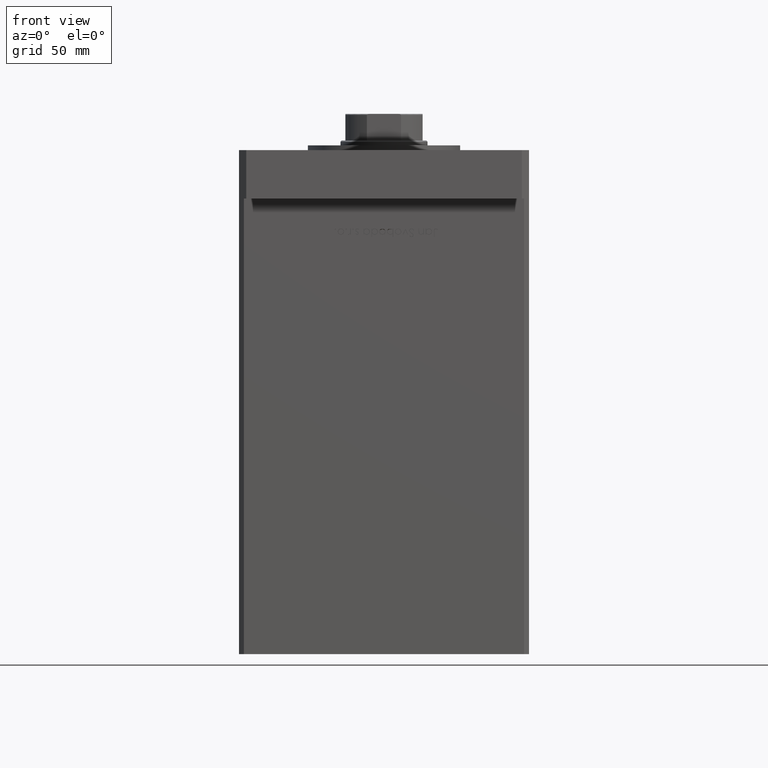
[diagram: clean part render]
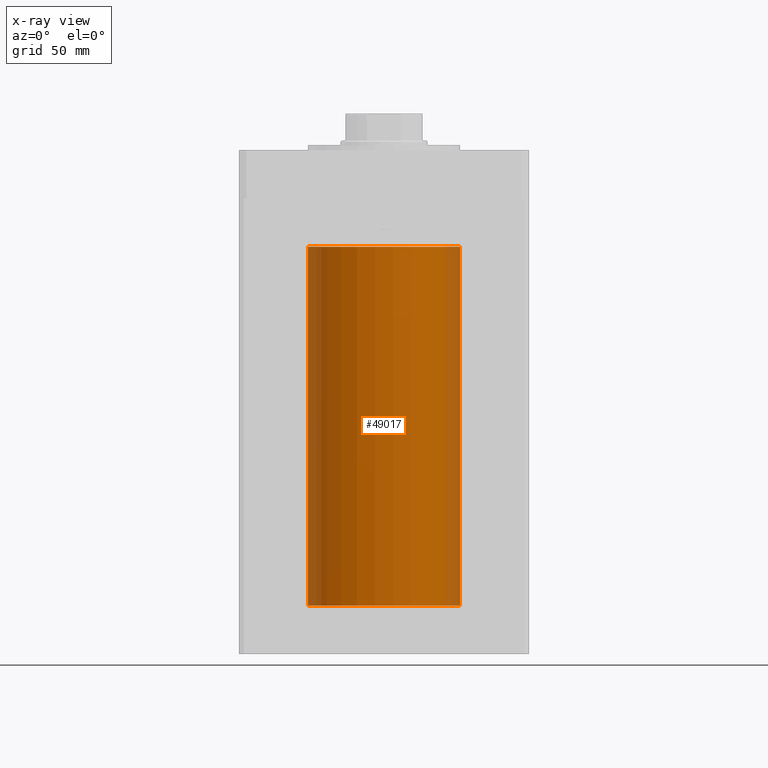
[diagram: x-ray — body ghosted, one internal face saturated and labeled with its STEP entity id]
A machine part, front view, then the same camera in x-ray: the body is ghosted and one INTERNAL B-rep face — a face not visible from any outside direction — is saturated and labeled: STEP entity #49017.
In plain terms, the highlighted cylindrical surface (partial cylindrical patch) has radius 31.5 mm, axis along (-0, -0, -1).
Its self-contained STEP definition (entity closure, byte-faithful):
#1363 = AXIS2_PLACEMENT_3D ( 'NONE', #49326, #12563, #24571 ) ;
#2351 = CYLINDRICAL_SURFACE ( 'NONE', #30828, 31.50000000000000000 ) ;
#4574 = VERTEX_POINT ( 'NONE', #13491 ) ;
#4929 = LINE ( 'NONE', #17739, #33316 ) ;
#9018 = AXIS2_PLACEMENT_3D ( 'NONE', #30120, #29583, #50269 ) ;
#12095 = CARTESIAN_POINT ( 'NONE',  ( 31.50000000000000000, 3.857637417314162689E-15, 148.5000000000000000 ) ) ;
#12563 = DIRECTION ( 'NONE',  ( -0.000000000000000000, 0.000000000000000000, 1.000000000000000000 ) ) ;
#13491 = CARTESIAN_POINT ( 'NONE',  ( -31.50000000000000000, 0.000000000000000000, 148.5000000000000000 ) ) ;
#17739 = CARTESIAN_POINT ( 'NONE',  ( 31.50000000000000000, 3.857637417314162689E-15, 148.5000000000000000 ) ) ;
#21691 = VERTEX_POINT ( 'NONE', #39095 ) ;
#21997 = DIRECTION ( 'NONE',  ( -0.000000000000000000, -0.000000000000000000, -1.000000000000000000 ) ) ;
#23183 = EDGE_LOOP ( 'NONE', ( #25368, #36296, #25384, #51197 ) ) ;
#24571 = DIRECTION ( 'NONE',  ( 1.000000000000000000, 0.000000000000000000, 0.000000000000000000 ) ) ;
#25110 = DIRECTION ( 'NONE',  ( -0.000000000000000000, -0.000000000000000000, -1.000000000000000000 ) ) ;
#25368 = ORIENTED_EDGE ( 'NONE', *, *, #52413, .T. ) ;
#25384 = ORIENTED_EDGE ( 'NONE', *, *, #46670, .F. ) ;
#26864 = FACE_OUTER_BOUND ( 'NONE', #23183, .T. ) ;
#29583 = DIRECTION ( 'NONE',  ( -0.000000000000000000, 0.000000000000000000, 1.000000000000000000 ) ) ;
#29915 = VECTOR ( 'NONE', #43338, 1000.000000000000000 ) ;
#30024 = CARTESIAN_POINT ( 'NONE',  ( -31.50000000000000000, 0.000000000000000000, 0.000000000000000000 ) ) ;
#30120 = CARTESIAN_POINT ( 'NONE',  ( 0.000000000000000000, 0.000000000000000000, 0.000000000000000000 ) ) ;
#30828 = AXIS2_PLACEMENT_3D ( 'NONE', #51365, #21997, #51906 ) ;
#33316 = VECTOR ( 'NONE', #25110, 1000.000000000000000 ) ;
#33361 = CIRCLE ( 'NONE', #9018, 31.50000000000000000 ) ;
#34384 = CARTESIAN_POINT ( 'NONE',  ( -31.50000000000000000, 0.000000000000000000, 148.5000000000000000 ) ) ;
#36296 = ORIENTED_EDGE ( 'NONE', *, *, #41023, .T. ) ;
#38472 = LINE ( 'NONE', #34384, #29915 ) ;
#39095 = CARTESIAN_POINT ( 'NONE',  ( 31.50000000000000000, 3.857637417314162689E-15, 0.000000000000000000 ) ) ;
#41023 = EDGE_CURVE ( 'NONE', #53668, #21691, #4929, .T. ) ;
#43304 = EDGE_CURVE ( 'NONE', #4574, #49604, #38472, .T. ) ;
#43338 = DIRECTION ( 'NONE',  ( -0.000000000000000000, -0.000000000000000000, -1.000000000000000000 ) ) ;
#46670 = EDGE_CURVE ( 'NONE', #49604, #21691, #33361, .T. ) ;
#48312 = CIRCLE ( 'NONE', #1363, 31.50000000000000000 ) ;
#49017 = ADVANCED_FACE ( 'NONE', ( #26864 ), #2351, .F. ) ;
#49326 = CARTESIAN_POINT ( 'NONE',  ( 0.000000000000000000, 0.000000000000000000, 148.5000000000000000 ) ) ;
#49604 = VERTEX_POINT ( 'NONE', #30024 ) ;
#50269 = DIRECTION ( 'NONE',  ( 1.000000000000000000, 0.000000000000000000, 0.000000000000000000 ) ) ;
#51197 = ORIENTED_EDGE ( 'NONE', *, *, #43304, .F. ) ;
#51365 = CARTESIAN_POINT ( 'NONE',  ( 0.000000000000000000, 0.000000000000000000, 148.5000000000000000 ) ) ;
#51906 = DIRECTION ( 'NONE',  ( -1.000000000000000000, 0.000000000000000000, 0.000000000000000000 ) ) ;
#52413 = EDGE_CURVE ( 'NONE', #4574, #53668, #48312, .T. ) ;
#53668 = VERTEX_POINT ( 'NONE', #12095 ) ;